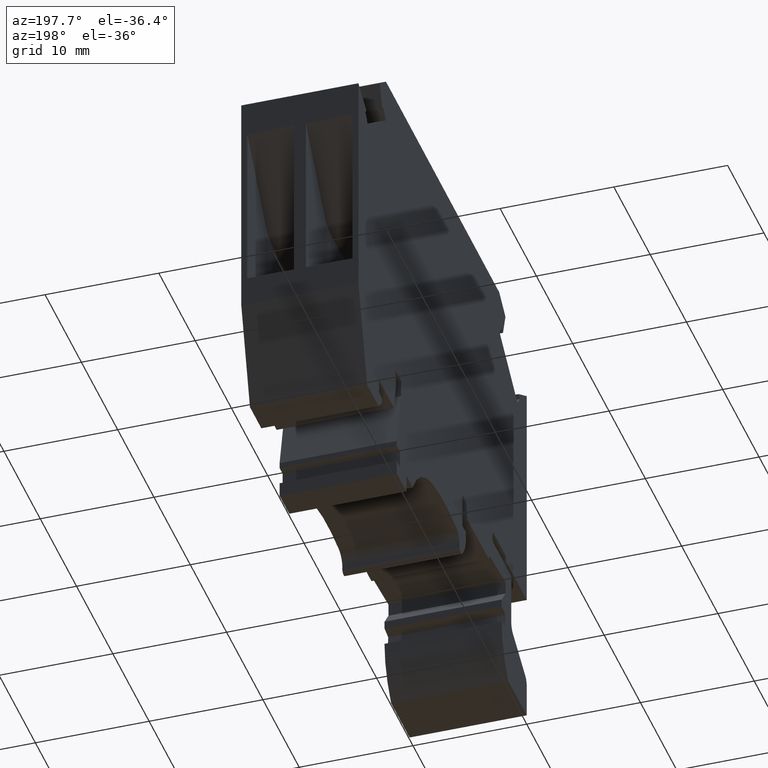
[diagram: clean part render]
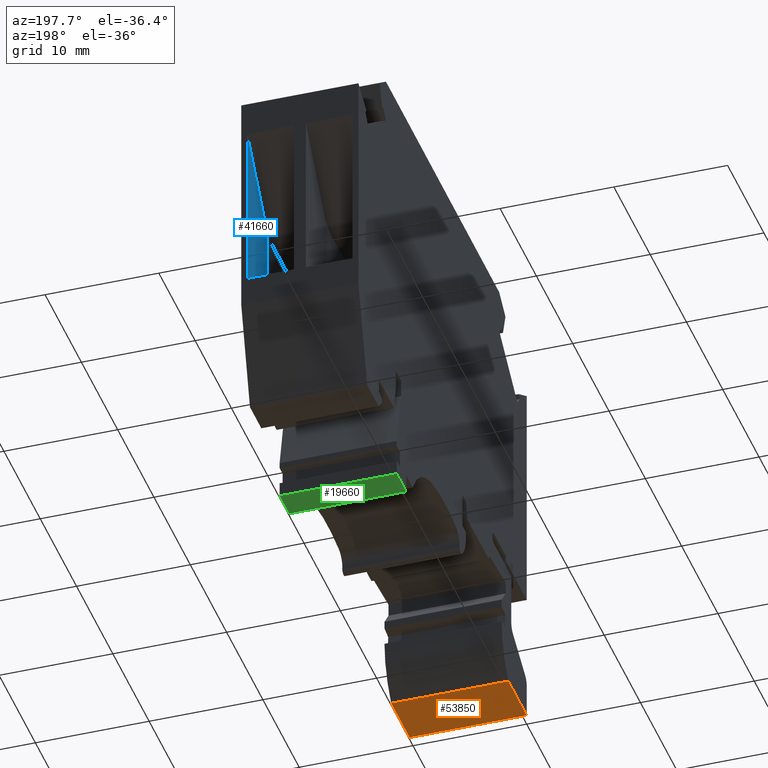
[diagram: same view with three faces highlighted in distinct colors, each labeled with its STEP entity id]
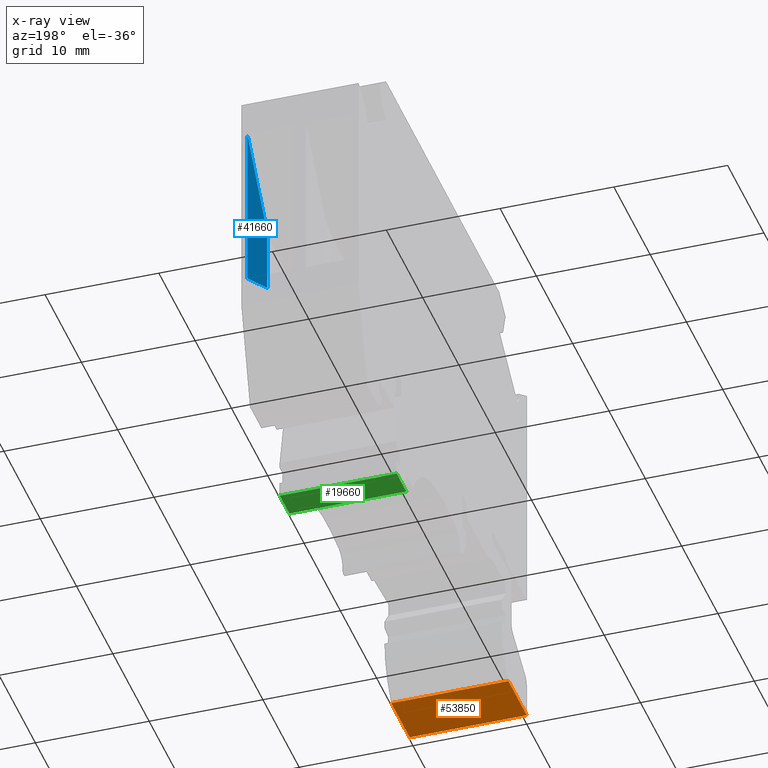
[diagram: x-ray of the same camera — body ghosted, the three highlighted faces saturated]
A machine part, auxiliary view with three faces highlighted in distinct colors.
The next image is the same camera in x-ray (body ghosted, the three faces saturated) — at least one of them is partly hidden behind the body in this view.
Their STEP definitions:

[orange] entity #53850 — the highlighted planar face has unit normal (0, 0, -1).
#4820=CARTESIAN_POINT('',(-39.7810787227897,4.22952375155828,10.3));
#4830=VERTEX_POINT('',#4820);
#4860=CARTESIAN_POINT('',(-56.8069065338077,4.22952375155828,10.3));
#4870=DIRECTION('',(1.,0.,0.));
#4880=VECTOR('',#4870,1.);
#4890=LINE('',#4860,#4880);
#4900=CARTESIAN_POINT('',(-44.8520985338077,4.22952375155828,10.3));
#4910=VERTEX_POINT('',#4900);
#4920=EDGE_CURVE('',#4910,#4830,#4890,.T.);
#6540=CARTESIAN_POINT('',(-44.8520985338077,4.22952375155828,
3.5527136788005E-15));
#6550=VERTEX_POINT('',#6540);
#6580=CARTESIAN_POINT('',(-56.8069065338077,4.22952375155828,
3.5527136788005E-15));
#6590=DIRECTION('',(-1.,0.,0.));
#6600=VECTOR('',#6590,1.);
#6610=LINE('',#6580,#6600);
#6620=CARTESIAN_POINT('',(-39.7810787227897,4.22952375155828,
-7.105427357601E-15));
#6630=VERTEX_POINT('',#6620);
#6640=EDGE_CURVE('',#6630,#6550,#6610,.T.);
#12690=CARTESIAN_POINT('',(-44.8520985338077,4.22952375155828,
-5.14999999999999));
#12700=DIRECTION('',(0.,0.,-1.));
#12710=VECTOR('',#12700,1.);
#12720=LINE('',#12690,#12710);
#12730=EDGE_CURVE('',#4910,#6550,#12720,.T.);
#13000=CARTESIAN_POINT('',(-39.7810787227897,4.22952375155828,5.15));
#13010=DIRECTION('',(0.,0.,1.));
#13020=VECTOR('',#13010,1.);
#13030=LINE('',#13000,#13020);
#13040=EDGE_CURVE('',#6630,#4830,#13030,.T.);
#53740=CARTESIAN_POINT('',(-44.8520985338077,4.22952375155828,5.15));
#53750=DIRECTION('',(-0.,-1.,-0.));
#53760=DIRECTION('',(-1.,0.,0.));
#53770=AXIS2_PLACEMENT_3D('',#53740,#53750,#53760);
#53780=PLANE('',#53770);
#53790=ORIENTED_EDGE('',*,*,#4920,.F.);
#53800=ORIENTED_EDGE('',*,*,#13040,.T.);
#53810=ORIENTED_EDGE('',*,*,#6640,.F.);
#53820=ORIENTED_EDGE('',*,*,#12730,.T.);
#53830=EDGE_LOOP('',(#53820,#53810,#53800,#53790));
#53840=FACE_OUTER_BOUND('',#53830,.T.);
#53850=ADVANCED_FACE('',(#53840),#53780,.T.);

[blue] entity #41660 — the highlighted planar face has unit normal (1, -0, 0).
#34440=CARTESIAN_POINT('',(1.49790146619231,34.3295237515583,9.775));
#34450=VERTEX_POINT('',#34440);
#34480=CARTESIAN_POINT('',(1.49790146619231,10.9158644389662,9.775));
#34490=DIRECTION('',(0.,1.,0.));
#34500=VECTOR('',#34490,1.);
#34510=LINE('',#34480,#34500);
#34520=CARTESIAN_POINT('',(1.49790146619231,19.3295237515583,9.775));
#34530=VERTEX_POINT('',#34520);
#34540=EDGE_CURVE('',#34530,#34450,#34510,.T.);
#39910=CARTESIAN_POINT('',(-4.02565782276799,27.9338235222359,
9.77500000000001));
#39920=VERTEX_POINT('',#39910);
#39970=CARTESIAN_POINT('',(-19.9165433974443,9.53385075155829,9.775));
#39980=DIRECTION('',(-0.653619870346096,-0.756823007769156,0.));
#39990=VECTOR('',#39980,1.);
#40000=LINE('',#39970,#39990);
#40010=EDGE_CURVE('',#34450,#39920,#40000,.T.);
#41240=CARTESIAN_POINT('',(-4.02565782276799,9.53385075155829,
9.77500000000001));
#41250=DIRECTION('',(0.,1.,0.));
#41260=VECTOR('',#41250,1.);
#41270=LINE('',#41240,#41260);
#41280=CARTESIAN_POINT('',(-4.02565782276799,22.1919350430033,
9.77500000000001));
#41290=VERTEX_POINT('',#41280);
#41300=EDGE_CURVE('',#41290,#39920,#41270,.T.);
#41500=CARTESIAN_POINT('',(1.4979014661923,34.3295237515583,9.775));
#41510=DIRECTION('',(0.,-0.,1.));
#41520=DIRECTION('',(0.,1.,0.));
#41530=AXIS2_PLACEMENT_3D('',#41500,#41510,#41520);
#41540=PLANE('',#41530);
#41550=CARTESIAN_POINT('',(13.4527094661923,13.1343196058094,9.775));
#41560=DIRECTION('',(0.887863315807394,-0.460107305357674,0.));
#41570=VECTOR('',#41560,1.);
#41580=LINE('',#41550,#41570);
#41590=EDGE_CURVE('',#41290,#34530,#41580,.T.);
#41600=ORIENTED_EDGE('',*,*,#41590,.F.);
#41610=ORIENTED_EDGE('',*,*,#34540,.F.);
#41620=ORIENTED_EDGE('',*,*,#40010,.F.);
#41630=ORIENTED_EDGE('',*,*,#41300,.T.);
#41640=EDGE_LOOP('',(#41630,#41620,#41610,#41600));
#41650=FACE_OUTER_BOUND('',#41640,.T.);
#41660=ADVANCED_FACE('',(#41650),#41540,.F.);

[green] entity #19660 — the highlighted planar face has unit normal (-0, -0, 1).
#3000=CARTESIAN_POINT('',(-9.0520985338077,4.22952375155818,10.3));
#3010=VERTEX_POINT('',#3000);
#3040=CARTESIAN_POINT('',(0.,4.22952375155818,10.3));
#3050=DIRECTION('',(-1.,0.,0.));
#3060=VECTOR('',#3050,1.);
#3070=LINE('',#3040,#3060);
#3080=CARTESIAN_POINT('',(-11.7020985338077,4.22952375155818,10.3));
#3090=VERTEX_POINT('',#3080);
#3100=EDGE_CURVE('',#3010,#3090,#3070,.T.);
#8360=CARTESIAN_POINT('',(-11.7020985338077,4.22952375155818,
-7.105427357601E-15));
#8370=VERTEX_POINT('',#8360);
#8400=CARTESIAN_POINT('',(0.,4.22952375155818,-7.105427357601E-15));
#8410=DIRECTION('',(-1.,0.,0.));
#8420=VECTOR('',#8410,1.);
#8430=LINE('',#8400,#8420);
#8440=CARTESIAN_POINT('',(-9.0520985338077,4.22952375155818,
-7.105427357601E-15));
#8450=VERTEX_POINT('',#8440);
#8460=EDGE_CURVE('',#8450,#8370,#8430,.T.);
#19340=CARTESIAN_POINT('',(-9.0520985338077,4.22952375155818,
-5.14999999999999));
#19350=DIRECTION('',(0.,0.,-1.));
#19360=VECTOR('',#19350,1.);
#19370=LINE('',#19340,#19360);
#19380=EDGE_CURVE('',#3010,#8450,#19370,.T.);
#19500=CARTESIAN_POINT('',(-9.25209853380769,4.22952375155818,5.15));
#19510=DIRECTION('',(-0.,1.,0.));
#19520=DIRECTION('',(1.,0.,0.));
#19530=AXIS2_PLACEMENT_3D('',#19500,#19510,#19520);
#19540=PLANE('',#19530);
#19550=ORIENTED_EDGE('',*,*,#3100,.T.);
#19560=ORIENTED_EDGE('',*,*,#19380,.F.);
#19570=ORIENTED_EDGE('',*,*,#8460,.F.);
#19580=CARTESIAN_POINT('',(-11.7020985338077,4.22952375155818,5.15));
#19590=DIRECTION('',(0.,0.,1.));
#19600=VECTOR('',#19590,1.);
#19610=LINE('',#19580,#19600);
#19620=EDGE_CURVE('',#8370,#3090,#19610,.T.);
#19630=ORIENTED_EDGE('',*,*,#19620,.F.);
#19640=EDGE_LOOP('',(#19630,#19570,#19560,#19550));
#19650=FACE_OUTER_BOUND('',#19640,.T.);
#19660=ADVANCED_FACE('',(#19650),#19540,.F.);